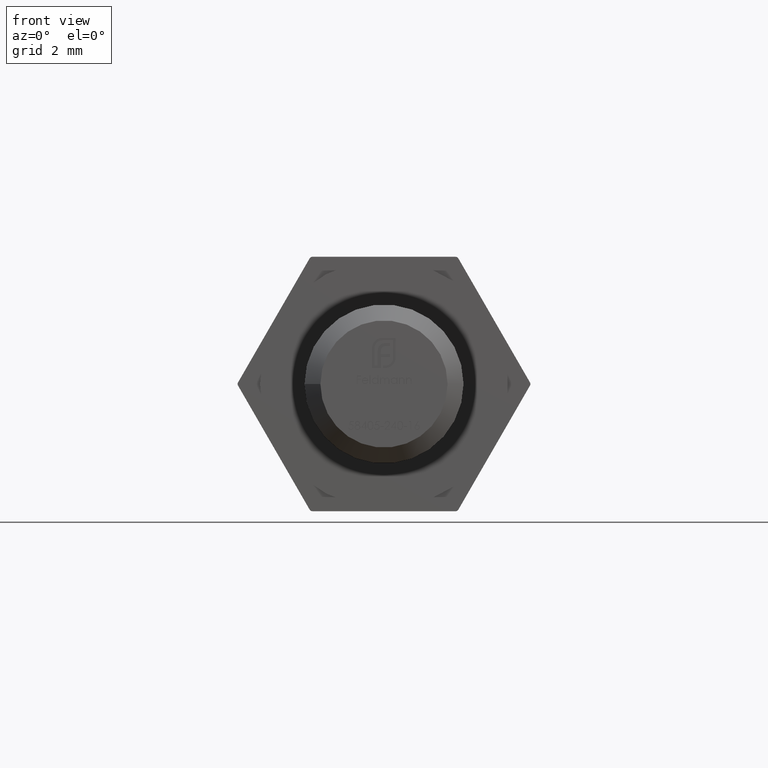
[diagram: clean part render]
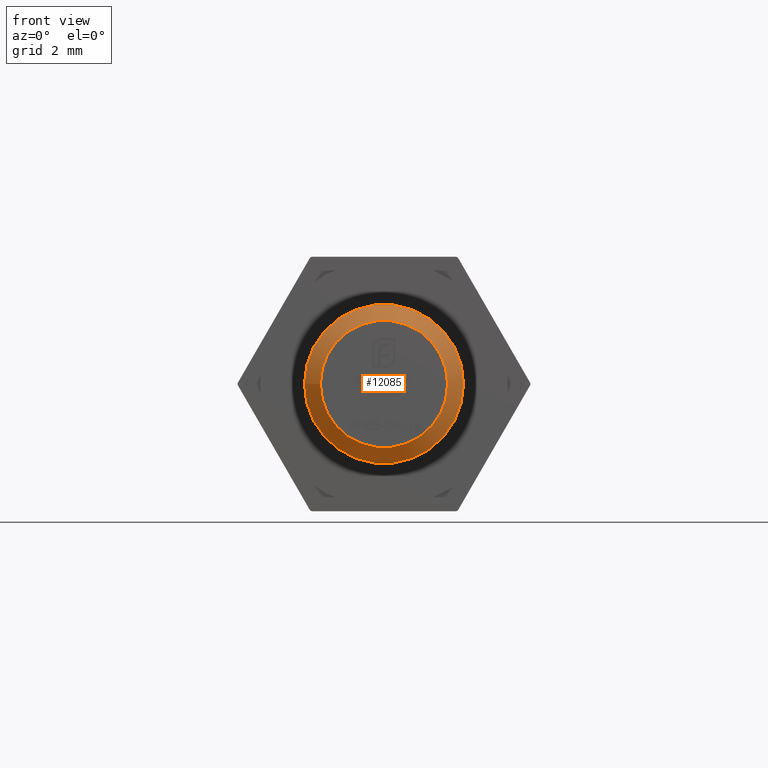
[diagram: same view with one face highlighted and labeled with its STEP entity id]
A machine part, front view. The second image highlights one B-rep face of the part: STEP entity #12085.
In plain terms, the highlighted conical surface has half-angle 45 deg.
Its self-contained STEP definition (entity closure, byte-faithful):
#88 = ORIENTED_EDGE ( 'NONE', *, *, #5968, .F. ) ;
#715 = CARTESIAN_POINT ( 'NONE',  ( -2.000000000000003109, -2.891205793294680792E-16, 0.000000000000000000 ) ) ;
#931 = CARTESIAN_POINT ( 'NONE',  ( -2.500000000000000444, 0.4999999999999967804, 0.000000000000000000 ) ) ;
#1226 = CARTESIAN_POINT ( 'NONE',  ( -4.448008912761028029E-17, 0.4999999999999970024, 0.000000000000000000 ) ) ;
#1296 = AXIS2_PLACEMENT_3D ( 'NONE', #16817, #7655, #7485 ) ;
#1680 = FACE_BOUND ( 'NONE', #5494, .T. ) ;
#4339 = CONICAL_SURFACE ( 'NONE', #1296, 2.500000000000000444, 0.7853981633974488341 ) ;
#5494 = EDGE_LOOP ( 'NONE', ( #88 ) ) ;
#5968 = EDGE_CURVE ( 'NONE', #16232, #16232, #14973, .T. ) ;
#6332 = AXIS2_PLACEMENT_3D ( 'NONE', #1226, #6549, #14348 ) ;
#6549 = DIRECTION ( 'NONE',  ( -8.896017825522109060E-17, 1.000000000000000000, -0.000000000000000000 ) ) ;
#7485 = DIRECTION ( 'NONE',  ( -1.000000000000000000, -8.673617379884034239E-17, 0.000000000000000000 ) ) ;
#7655 = DIRECTION ( 'NONE',  ( -8.896017825522109060E-17, 1.000000000000000000, -0.000000000000000000 ) ) ;
#8225 = DIRECTION ( 'NONE',  ( -1.000000000000000000, -8.896017825522086874E-17, 0.000000000000000000 ) ) ;
#9593 = EDGE_CURVE ( 'NONE', #12716, #12716, #15736, .T. ) ;
#11197 = AXIS2_PLACEMENT_3D ( 'NONE', #16137, #12161, #8225 ) ;
#11455 = ORIENTED_EDGE ( 'NONE', *, *, #9593, .F. ) ;
#12085 = ADVANCED_FACE ( 'NONE', ( #1680, #13842 ), #4339, .T. ) ;
#12161 = DIRECTION ( 'NONE',  ( 8.896017825522085641E-17, -1.000000000000000000, 0.000000000000000000 ) ) ;
#12716 = VERTEX_POINT ( 'NONE', #931 ) ;
#13842 = FACE_OUTER_BOUND ( 'NONE', #14086, .T. ) ;
#14086 = EDGE_LOOP ( 'NONE', ( #11455 ) ) ;
#14348 = DIRECTION ( 'NONE',  ( -1.000000000000000000, -8.673617379884034239E-17, 0.000000000000000000 ) ) ;
#14973 = CIRCLE ( 'NONE', #11197, 2.000000000000003109 ) ;
#15736 = CIRCLE ( 'NONE', #6332, 2.500000000000000444 ) ;
#16137 = CARTESIAN_POINT ( 'NONE',  ( 3.873860567790750434E-33, -1.112002228190260705E-16, 0.000000000000000000 ) ) ;
#16232 = VERTEX_POINT ( 'NONE', #715 ) ;
#16817 = CARTESIAN_POINT ( 'NONE',  ( -4.448008912761028029E-17, 0.4999999999999970024, 0.000000000000000000 ) ) ;